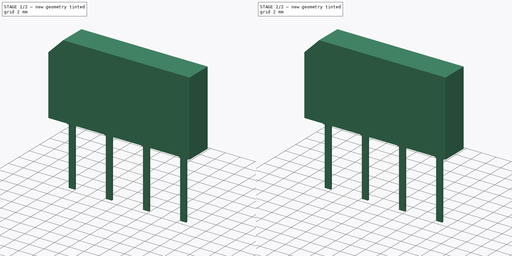
[diagram: build sequence overview — one tinted view per stage of 2, left to right]
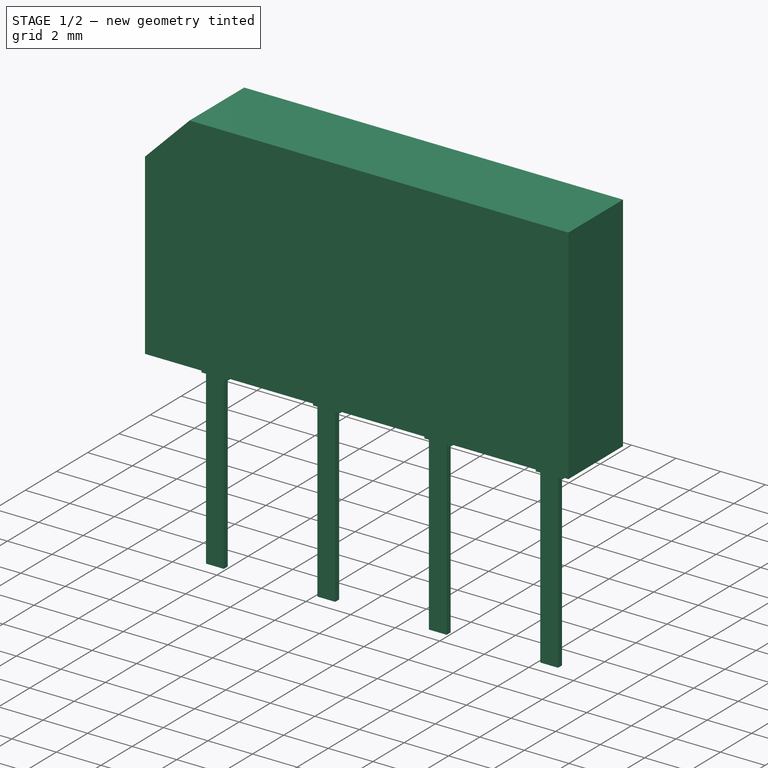
[diagram: stage 1 of 2 — iso view after this stage's code; geometry added in this stage tinted green]
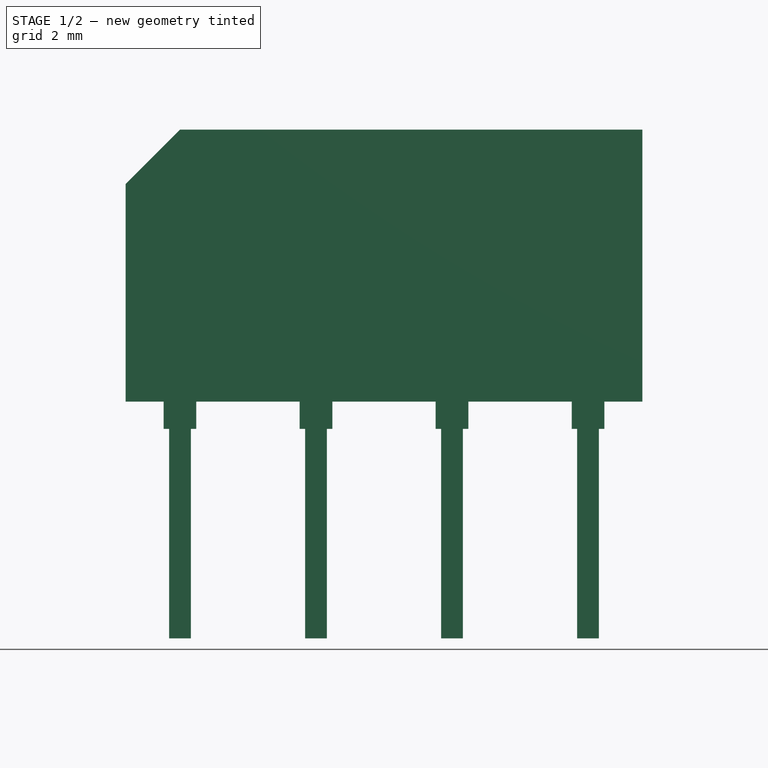
[diagram: stage 1 of 2 — front view after this stage's code; geometry added in this stage tinted green]
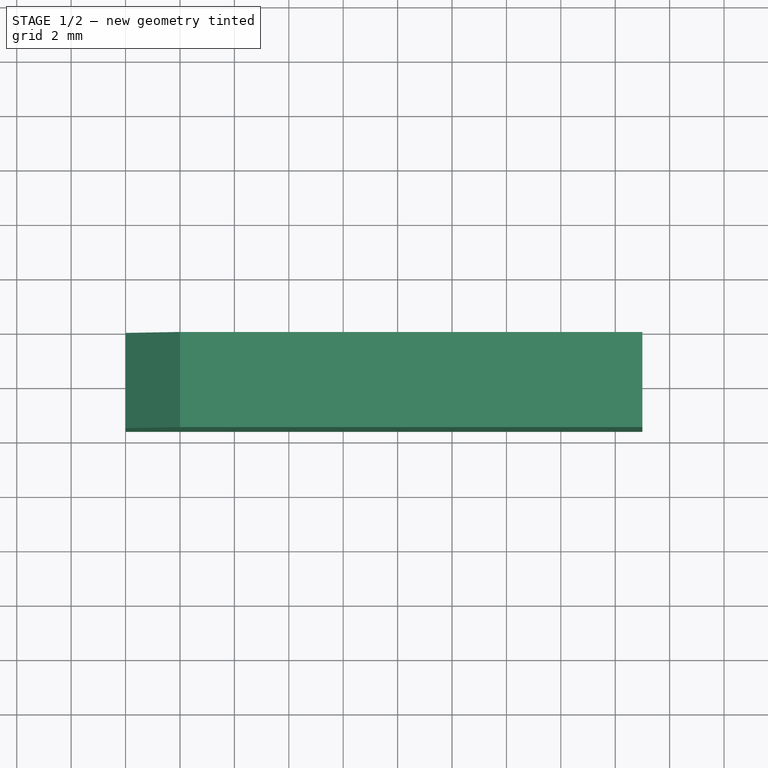
[diagram: stage 1 of 2 — top view after this stage's code; geometry added in this stage tinted green]
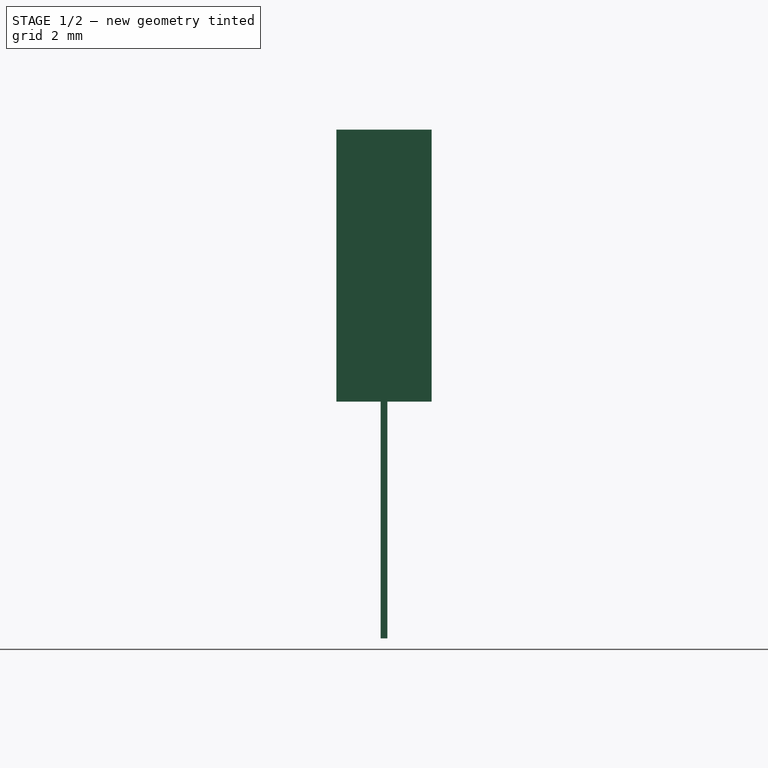
[diagram: stage 1 of 2 — right view after this stage's code; geometry added in this stage tinted green]
FCSTD DOCUMENT  (FreeCAD 0.16R6712 (Git))
Label: Diode_Bridge_19.0x3.5x10.0mm_P5.0mm
License: All rights reserved
LicenseURL: http://en.wikipedia.org/wiki/All_rights_reserved
objects: Part::Feature×3, Sketcher::SketchObject×2, PartDesign::Pad×2, App::DocumentObjectGroup×1, Part::MultiFuse×1
note: 10 computed .brp shape members not serialized (recipe doc carries the construction recipe); baked Part::Feature solids carry a one-line shape summary decoded from their .brp

FEATURE [Sketcher::SketchObject] Sketch001
  Placement = pos=(0,0,0) rot=(1,0,0;1.5708rad)
  sketch-geometry (5):
    g0: LineSegment StartX=17 StartY=1 StartZ=0 EndX=17 EndY=11 EndZ=0
    g1: LineSegment StartX=17 StartY=11 StartZ=0 EndX=0 EndY=11 EndZ=0
    g2: LineSegment StartX=-2 StartY=9 StartZ=0 EndX=-2 EndY=1 EndZ=0
    g3: LineSegment StartX=-2 StartY=1 StartZ=0 EndX=17 EndY=1 EndZ=0
    g4: LineSegment StartX=-2 StartY=9 StartZ=0 EndX=0 EndY=11 EndZ=0
  constraints (17):
    c: Vertical(g0)
    c: Horizontal(g1)
    c: Vertical(g2)
    c: DistanceX(g2,g0) = 19
    c: Horizontal(g3)
    c: Coincident(g2,g3)
    c: Coincident(g0,g3)
    c: DistanceY(g2,g1) = 10
    c: DistanceY(g-1,g0) = 1
    c: Coincident(g0,g1)
    c: PointOnObject(g4,g2)
    c: PointOnObject(g4,g1)
    c: Coincident(g1,g4)
    c: Coincident(g2,g4)
    c: DistanceY(g4,g4) = 2
    c: Angle(g4,g1) = 2.35619
    c: DistanceX(g2,g-1) = 2
FEATURE [Part::Feature] FusionAxisZ1  label="Z"
  shape: bbox 0.8 x 0.8 x 14 mm, 8 faces (baked)
FEATURE [Part::Feature] FusionAxisY1  label="Y"
  Placement = pos=(0,0,0.05) rot=(-1,0,0;1.5708rad)
  shape: bbox 0.8 x 14 x 0.8 mm, 8 faces (baked)
FEATURE [Part::Feature] FusionAxisX1  label="X"
  Placement = pos=(0,-0.05,0) rot=(0,1,0;1.5708rad)
  shape: bbox 14 x 0.8 x 0.8 mm, 8 faces (baked)
FEATURE [App::DocumentObjectGroup] axis
  Group = -> [FusionAxisZ1,FusionAxisY1,FusionAxisX1]
FEATURE [PartDesign::Pad] Pad
  Length = 3.5
  Length2 = 100
  Midplane = true
  Placement = pos=(0,0,0) rot=(1,0,0;1.5708rad)
  Sketch = -> Sketch001
  Type = 0
FEATURE [Sketcher::SketchObject] Sketch
  Placement = pos=(0,0,0) rot=(-1,0,0;4.71239rad)
  sketch-geometry (36):
    g0: LineSegment StartX=0.4 StartY=0 StartZ=0 EndX=0.4 EndY=-7.7 EndZ=0
    g1: LineSegment StartX=0.4 StartY=-7.7 StartZ=0 EndX=-0.4 EndY=-7.7 EndZ=0
    g2: LineSegment StartX=-0.4 StartY=-7.7 StartZ=0 EndX=-0.4 EndY=0 EndZ=0
    g3: LineSegment StartX=-0.6 StartY=1.5 StartZ=0 EndX=0.6 EndY=1.5 EndZ=0
    g4: LineSegment StartX=0.6 StartY=1.5 StartZ=0 EndX=0.6 EndY=0 EndZ=0
    g5: LineSegment StartX=-0.6 StartY=0 StartZ=0 EndX=-0.6 EndY=1.5 EndZ=0
    g6: LineSegment StartX=-0.6 StartY=0 StartZ=0 EndX=-0.4 EndY=0 EndZ=0
    g7: LineSegment StartX=0.4 StartY=0 StartZ=0 EndX=0.6 EndY=0 EndZ=0
    g8: LineSegment [constr] StartX=-0.4 StartY=0 StartZ=0 EndX=0.4 EndY=0 EndZ=0
    g9: LineSegment StartX=5.4 StartY=0 StartZ=0 EndX=5.4 EndY=-7.7 EndZ=0
    g10: LineSegment StartX=5.4 StartY=-7.7 StartZ=0 EndX=4.6 EndY=-7.7 EndZ=0
    g11: LineSegment StartX=4.6 StartY=-7.7 StartZ=0 EndX=4.6 EndY=0 EndZ=0
    g12: LineSegment StartX=4.4 StartY=1.5 StartZ=0 EndX=5.6 EndY=1.5 EndZ=0
    g13: LineSegment StartX=5.6 StartY=1.5 StartZ=0 EndX=5.6 EndY=0 EndZ=0
    g14: LineSegment StartX=4.4 StartY=0 StartZ=0 EndX=4.4 EndY=1.5 EndZ=0
    g15: LineSegment StartX=4.4 StartY=0 StartZ=0 EndX=4.6 EndY=0 EndZ=0
    g16: LineSegment StartX=5.4 StartY=0 StartZ=0 EndX=5.6 EndY=0 EndZ=0
    g17: LineSegment [constr] StartX=4.6 StartY=0 StartZ=0 EndX=5.4 EndY=0 EndZ=0
    g18: LineSegment StartX=10.4 StartY=0 StartZ=0 EndX=10.4 EndY=-7.7 EndZ=0
    g19: LineSegment StartX=10.4 StartY=-7.7 StartZ=0 EndX=9.6 EndY=-7.7 EndZ=0
    g20: LineSegment StartX=9.6 StartY=-7.7 StartZ=0 EndX=9.6 EndY=0 EndZ=0
    g21: LineSegment StartX=9.4 StartY=1.5 StartZ=0 EndX=10.6 EndY=1.5 EndZ=0
    g22: LineSegment StartX=10.6 StartY=1.5 StartZ=0 EndX=10.6 EndY=0 EndZ=0
    g23: LineSegment StartX=9.4 StartY=0 StartZ=0 EndX=9.4 EndY=1.5 EndZ=0
    g24: LineSegment StartX=9.4 StartY=0 StartZ=0 EndX=9.6 EndY=0 EndZ=0
    g25: LineSegment StartX=10.4 StartY=0 StartZ=0 EndX=10.6 EndY=0 EndZ=0
    g26: LineSegment [constr] StartX=9.6 StartY=0 StartZ=0 EndX=10.4 EndY=0 EndZ=0
    g27: LineSegment StartX=15.4 StartY=0 StartZ=0 EndX=15.4 EndY=-7.7 EndZ=0
    g28: LineSegment StartX=15.4 StartY=-7.7 StartZ=0 EndX=14.6 EndY=-7.7 EndZ=0
    g29: LineSegment StartX=14.6 StartY=-7.7 StartZ=0 EndX=14.6 EndY=0 EndZ=0
    g30: LineSegment StartX=14.4 StartY=1.5 StartZ=0 EndX=15.6 EndY=1.5 EndZ=0
    g31: LineSegment StartX=15.6 StartY=1.5 StartZ=0 EndX=15.6 EndY=0 EndZ=0
    g32: LineSegment StartX=14.4 StartY=0 StartZ=0 EndX=14.4 EndY=1.5 EndZ=0
    g33: LineSegment StartX=14.4 StartY=0 StartZ=0 EndX=14.6 EndY=0 EndZ=0
    g34: LineSegment StartX=15.4 StartY=0 StartZ=0 EndX=15.6 EndY=0 EndZ=0
    g35: LineSegment [constr] StartX=14.6 StartY=0 StartZ=0 EndX=15.4 EndY=0 EndZ=0
  constraints (104):
    c: Coincident(g0,g1)
    c: Coincident(g1,g2)
    c: Horizontal(g1)
    c: Vertical(g0)
    c: Vertical(g2)
    c: PointOnObject(g2,g-1)
    c: Coincident(g3,g4)
    c: Coincident(g5,g3)
    c: Horizontal(g3)
    c: Vertical(g4)
    c: Vertical(g5)
    c: Coincident(g6,g5)
    c: Coincident(g6,g2)
    c: Coincident(g7,g0)
    c: DistanceX(g1,g1) = 0.8
    c: DistanceX(g3,g3) = 1.2
    c: DistanceY(g-1,g3) = 1.5
    c: Coincident(g4,g7)
    c: Horizontal(g7)
    c: Equal(g6,g7)
    c: Horizontal(g6)
    c: Coincident(g8,g2)
    c: PointOnObject(g8,g-1)
    c: Coincident(g0,g8)
    c: Symmetric(g8,g8,g-1)
    c: DistanceY(g2,g2) = 7.7
    c: Coincident(g9,g10)
    c: Coincident(g10,g11)
    c: Horizontal(g10)
    c: Vertical(g9)
    c: Vertical(g11)
    c: Coincident(g12,g13)
    c: Coincident(g14,g12)
    c: Horizontal(g12)
    c: Vertical(g13)
    c: Vertical(g14)
    c: Coincident(g15,g14)
    c: Coincident(g15,g11)
    c: Coincident(g16,g9)
    c: Equal(g1,g10) = 0.8
    c: Equal(g3,g12) = 1.2
    c: Coincident(g13,g16)
    c: Horizontal(g16)
    c: Equal(g15,g16)
    c: Horizontal(g15)
    c: Coincident(g17,g11)
    c: Coincident(g9,g17)
    c: Equal(g2,g11) = 7.7
    c: DistanceX(g3,g12) = 5
    c: Coincident(g18,g19)
    c: Coincident(g19,g20)
    c: Horizontal(g19)
    c: Vertical(g18)
    c: Vertical(g20)
    c: Coincident(g21,g22)
    c: Coincident(g23,g21)
    c: Horizontal(g21)
    c: Vertical(g22)
    c: Vertical(g23)
    c: Coincident(g24,g23)
    c: Coincident(g24,g20)
    c: Coincident(g25,g18)
    c: Equal(g1,g19) = 0.8
    c: Equal(g3,g21) = 1.2
    c: Coincident(g22,g25)
    c: Horizontal(g25)
    c: Equal(g24,g25)
    c: Horizontal(g24)
    c: Coincident(g26,g20)
    c: Coincident(g18,g26)
    c: Equal(g2,g20) = 7.7
    c: Coincident(g27,g28)
    c: Coincident(g28,g29)
    c: Horizontal(g28)
    c: Vertical(g27)
    c: Vertical(g29)
    c: Coincident(g30,g31)
    c: Coincident(g32,g30)
    c: Horizontal(g30)
    c: Vertical(g31)
    c: Vertical(g32)
    c: Coincident(g33,g32)
    c: Coincident(g33,g29)
    c: Coincident(g34,g27)
    c: Equal(g19,g28) = 0.8
    c: Equal(g21,g30) = 1.2
    c: Coincident(g31,g34)
    c: Horizontal(g34)
    c: Equal(g33,g34)
    c: Horizontal(g33)
    c: Coincident(g35,g29)
    c: Coincident(g27,g35)
    c: Equal(g20,g29) = 7.7
    c: DistanceX(g21,g30) = 5
    c: DistanceX(g12,g21) = 5
    c: PointOnObject(g20,g-1)
    c: PointOnObject(g9,g-1)
    c: PointOnObject(g27,g-1)
    c: Horizontal(g35)
    c: Horizontal(g26)
    c: Horizontal(g17)
    c: Equal(g5,g14)
    c: Equal(g14,g23)
    c: Equal(g23,g32)
FEATURE [PartDesign::Pad] Pad001
  Length = 0.25
  Length2 = 100
  Midplane = true
  Placement = pos=(0,0,0) rot=(-1,0,0;4.71239rad)
  Sketch = -> Sketch
  Type = 0
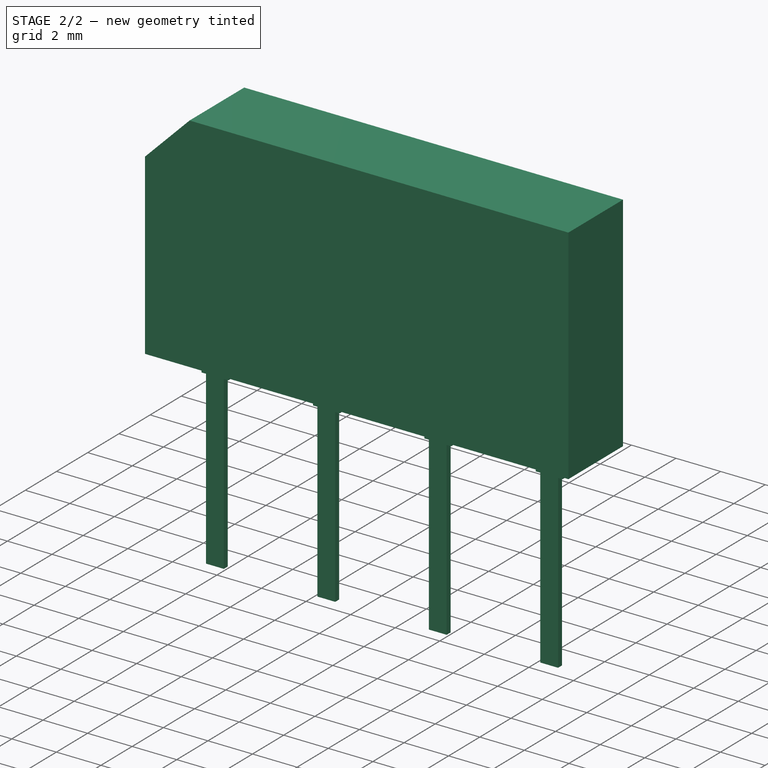
[diagram: stage 2 of 2 — iso view after this stage's code; geometry added in this stage tinted green]
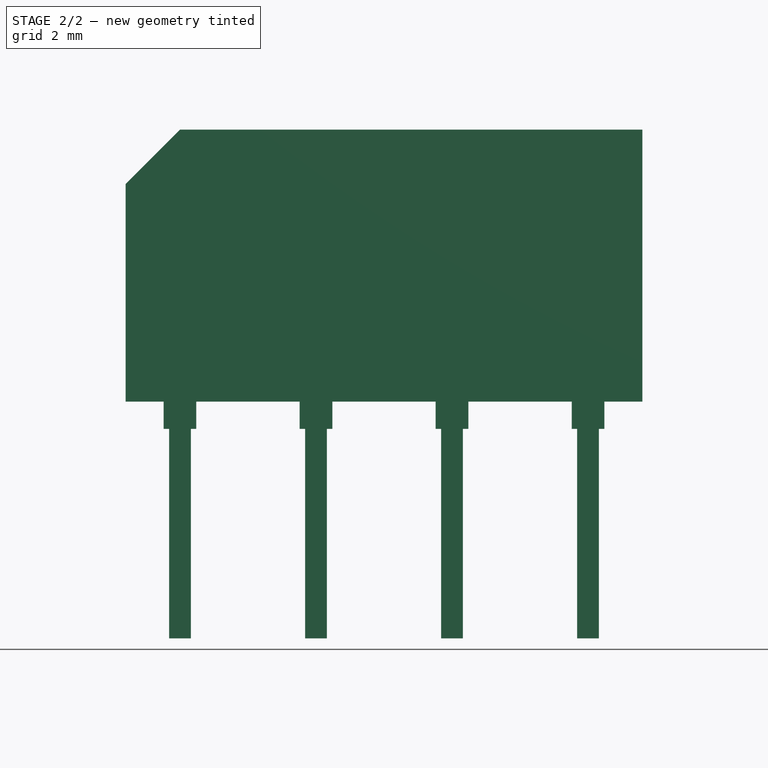
[diagram: stage 2 of 2 — front view after this stage's code; geometry added in this stage tinted green]
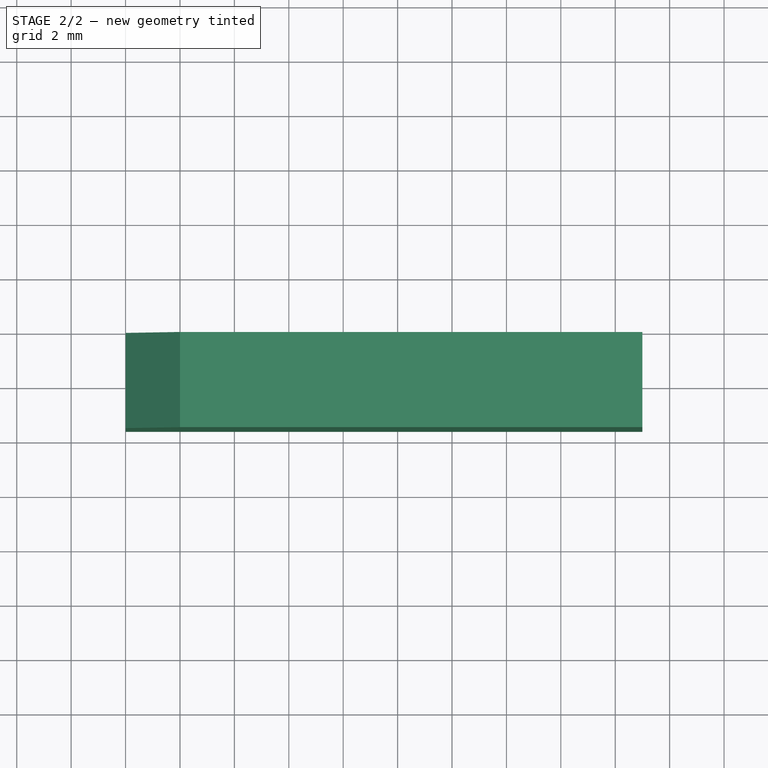
[diagram: stage 2 of 2 — top view after this stage's code; geometry added in this stage tinted green]
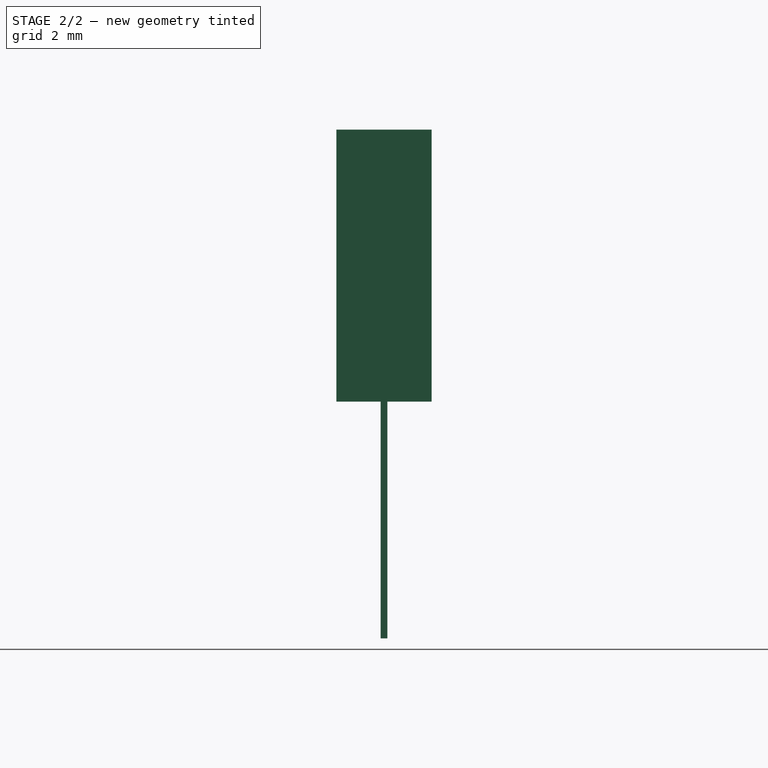
[diagram: stage 2 of 2 — right view after this stage's code; geometry added in this stage tinted green]
FEATURE [Part::MultiFuse] Pad_mp_cp  label="Diode_Bridge_19.0x3.5x10.0mm_P5.0mm"
  Shapes = -> [Pad,Pad001]
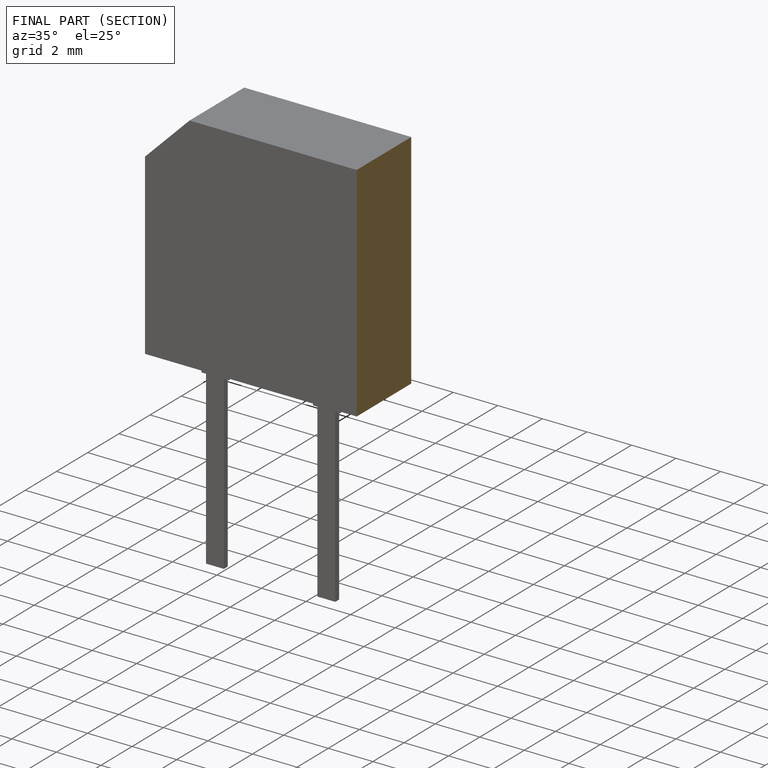
[diagram: finished part — half-section view (interior)]
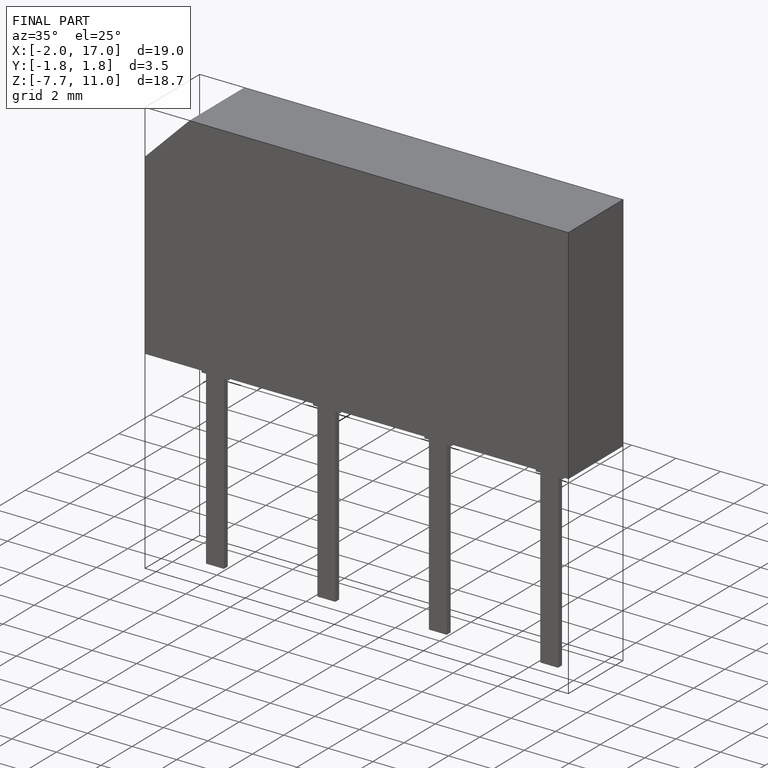
[diagram: finished part — iso view with bounding-box wireframe]
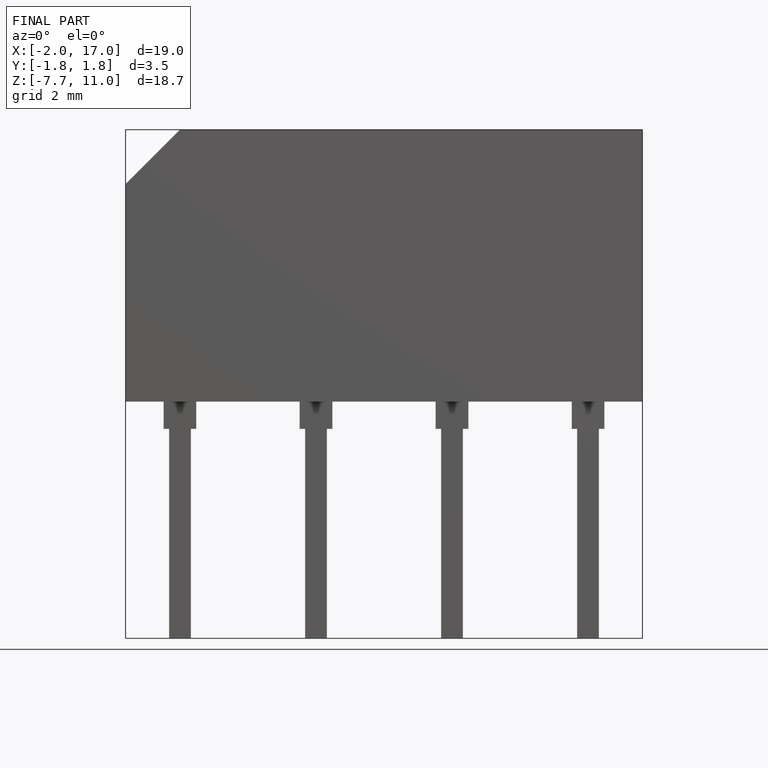
[diagram: finished part — front view with bounding-box wireframe]
